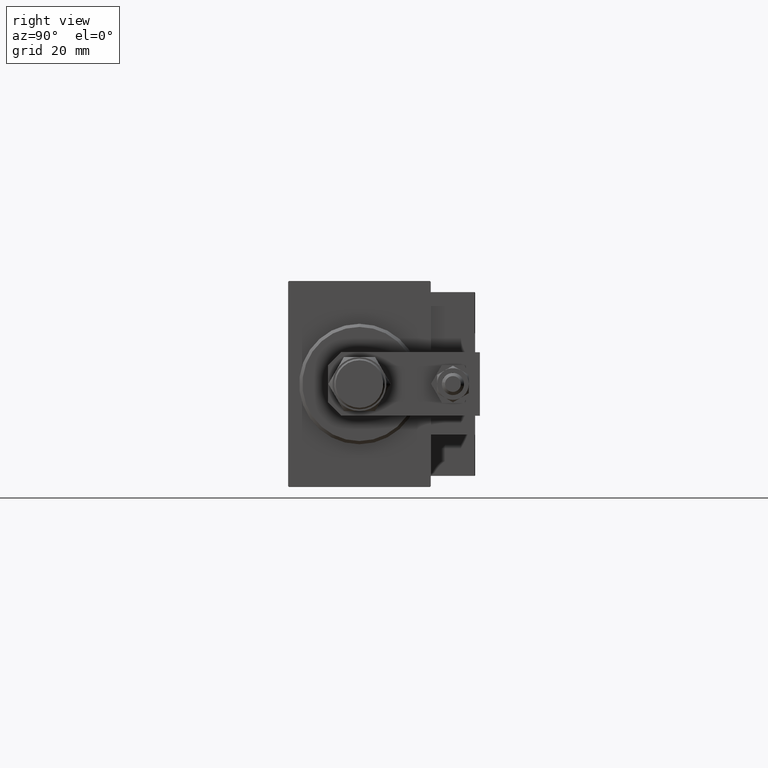
[diagram: clean part render]
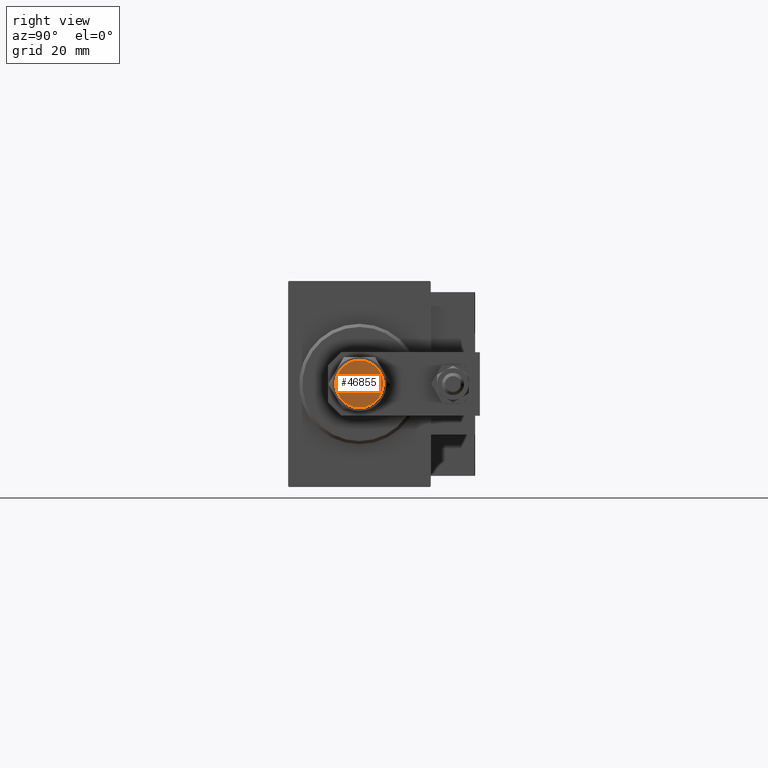
[diagram: same view with one face highlighted and labeled with its STEP entity id]
A machine part, right view. The second image highlights one B-rep face of the part: STEP entity #46855.
In plain terms, the highlighted planar face has unit normal (1, 0, -0).
Its self-contained STEP definition (entity closure, byte-faithful):
#712 = AXIS2_PLACEMENT_3D ( 'NONE', #7974, #4316, #40485 ) ;
#3259 = EDGE_CURVE ( 'NONE', #14008, #17772, #28513, .T. ) ;
#4316 = DIRECTION ( 'NONE',  ( 0.000000000000000000, 0.000000000000000000, 1.000000000000000000 ) ) ;
#7974 = CARTESIAN_POINT ( 'NONE',  ( 0.000000000000000000, 0.000000000000000000, 28.00000000000000000 ) ) ;
#9618 = DIRECTION ( 'NONE',  ( 1.000000000000000000, 0.000000000000000000, 0.000000000000000000 ) ) ;
#10483 = EDGE_CURVE ( 'NONE', #17772, #14008, #20783, .T. ) ;
#12428 = FACE_OUTER_BOUND ( 'NONE', #30162, .T. ) ;
#14008 = VERTEX_POINT ( 'NONE', #30152 ) ;
#17772 = VERTEX_POINT ( 'NONE', #23714 ) ;
#18011 = CARTESIAN_POINT ( 'NONE',  ( 0.000000000000000000, 0.000000000000000000, 28.00000000000000000 ) ) ;
#20783 = CIRCLE ( 'NONE', #22449, 7.500000000000000000 ) ;
#22208 = ORIENTED_EDGE ( 'NONE', *, *, #3259, .T. ) ;
#22449 = AXIS2_PLACEMENT_3D ( 'NONE', #18011, #29558, #9618 ) ;
#23055 = DIRECTION ( 'NONE',  ( 0.000000000000000000, 0.000000000000000000, 1.000000000000000000 ) ) ;
#23714 = CARTESIAN_POINT ( 'NONE',  ( 7.500000000000000000, 9.491012693391985815E-16, 28.00000000000000000 ) ) ;
#24215 = PLANE ( 'NONE',  #712 ) ;
#28513 = CIRCLE ( 'NONE', #35211, 7.500000000000000000 ) ;
#29558 = DIRECTION ( 'NONE',  ( 0.000000000000000000, 0.000000000000000000, 1.000000000000000000 ) ) ;
#30152 = CARTESIAN_POINT ( 'NONE',  ( -7.500000000000000000, 0.000000000000000000, 28.00000000000000000 ) ) ;
#30162 = EDGE_LOOP ( 'NONE', ( #22208, #45432 ) ) ;
#30430 = DIRECTION ( 'NONE',  ( 1.000000000000000000, 0.000000000000000000, 0.000000000000000000 ) ) ;
#30926 = CARTESIAN_POINT ( 'NONE',  ( 0.000000000000000000, 0.000000000000000000, 28.00000000000000000 ) ) ;
#35211 = AXIS2_PLACEMENT_3D ( 'NONE', #30926, #23055, #30430 ) ;
#40485 = DIRECTION ( 'NONE',  ( 1.000000000000000000, 0.000000000000000000, -0.000000000000000000 ) ) ;
#45432 = ORIENTED_EDGE ( 'NONE', *, *, #10483, .T. ) ;
#46855 = ADVANCED_FACE ( 'NONE', ( #12428 ), #24215, .T. ) ;